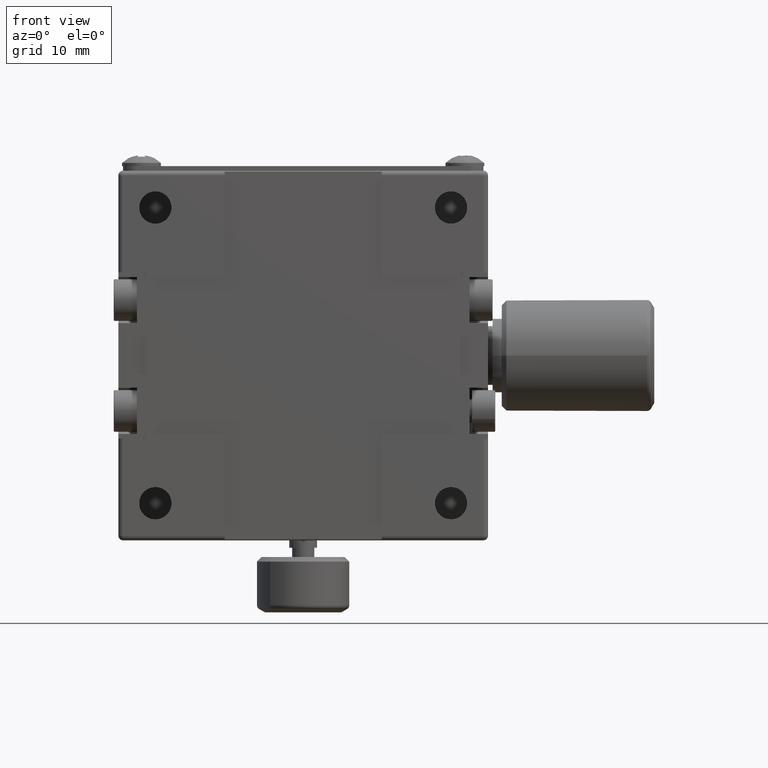
[diagram: clean part render]
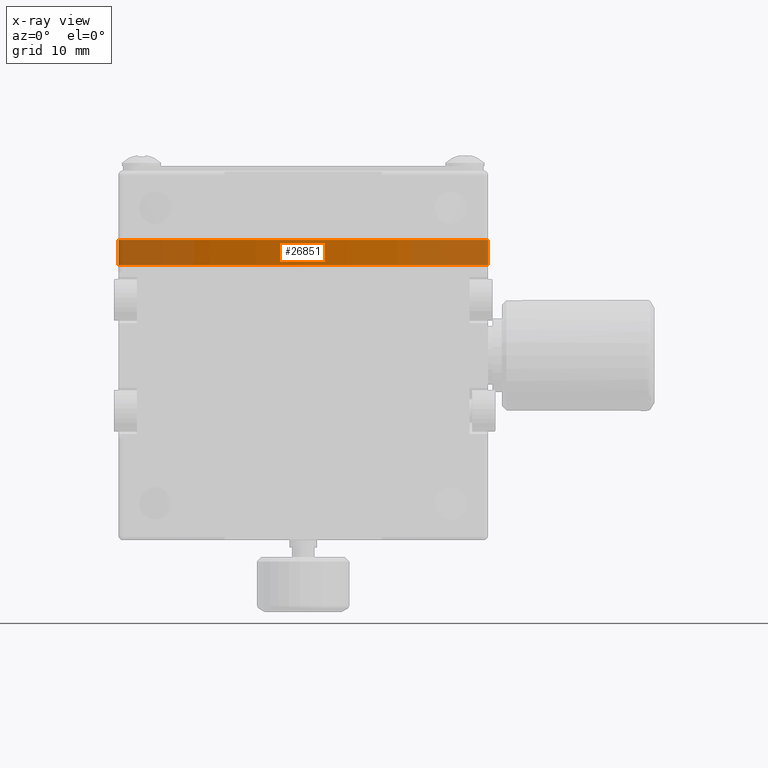
[diagram: x-ray — body ghosted, one internal face saturated and labeled with its STEP entity id]
A machine part, front view, then the same camera in x-ray: the body is ghosted and one INTERNAL B-rep face — a face not visible from any outside direction — is saturated and labeled: STEP entity #26851.
In plain terms, the highlighted cylindrical surface (partial cylindrical patch) has radius 52.8 mm, axis along (0, 0, 1).
Its self-contained STEP definition (entity closure, byte-faithful):
#735 = AXIS2_PLACEMENT_3D ( 'NONE', #7757, #3653, #10085 ) ;
#1606 = DIRECTION ( 'NONE',  ( 0.000000000000000000, 0.000000000000000000, 1.000000000000000000 ) ) ;
#3174 = VERTEX_POINT ( 'NONE', #23782 ) ;
#3506 = CARTESIAN_POINT ( 'NONE',  ( 0.000000000000000000, 80.00000000000000000, 9.799999999999998934 ) ) ;
#3653 = DIRECTION ( 'NONE',  ( 0.000000000000000000, 0.000000000000000000, 1.000000000000000000 ) ) ;
#3990 = ORIENTED_EDGE ( 'NONE', *, *, #7629, .F. ) ;
#7100 = VERTEX_POINT ( 'NONE', #12073 ) ;
#7629 = EDGE_CURVE ( 'NONE', #26349, #7100, #11826, .T. ) ;
#7757 = CARTESIAN_POINT ( 'NONE',  ( 0.000000000000000000, 80.00000000000000000, 12.50000000000000000 ) ) ;
#7844 = EDGE_LOOP ( 'NONE', ( #12038, #3990, #17969, #9786 ) ) ;
#9546 = FACE_OUTER_BOUND ( 'NONE', #7844, .T. ) ;
#9786 = ORIENTED_EDGE ( 'NONE', *, *, #20801, .F. ) ;
#10085 = DIRECTION ( 'NONE',  ( 1.000000000000000000, 0.000000000000000000, 0.000000000000000000 ) ) ;
#11158 = CYLINDRICAL_SURFACE ( 'NONE', #16311, 52.79999999999999716 ) ;
#11826 = LINE ( 'NONE', #18843, #21847 ) ;
#12038 = ORIENTED_EDGE ( 'NONE', *, *, #13849, .T. ) ;
#12073 = CARTESIAN_POINT ( 'NONE',  ( 20.00000000000000000, 31.13447022695855182, 9.799999999999998934 ) ) ;
#12384 = VERTEX_POINT ( 'NONE', #14633 ) ;
#12711 = CARTESIAN_POINT ( 'NONE',  ( -20.00000000000000000, 31.13447022695855182, -9.250555349946518291 ) ) ;
#12993 = LINE ( 'NONE', #12711, #18959 ) ;
#13849 = EDGE_CURVE ( 'NONE', #12384, #7100, #24777, .T. ) ;
#13934 = DIRECTION ( 'NONE',  ( 1.000000000000000000, 0.000000000000000000, 0.000000000000000000 ) ) ;
#14633 = CARTESIAN_POINT ( 'NONE',  ( -20.00000000000000000, 31.13447022695855182, 9.799999999999998934 ) ) ;
#14750 = DIRECTION ( 'NONE',  ( 1.000000000000000000, 0.000000000000000000, 0.000000000000000000 ) ) ;
#16060 = DIRECTION ( 'NONE',  ( 0.000000000000000000, 0.000000000000000000, -1.000000000000000000 ) ) ;
#16311 = AXIS2_PLACEMENT_3D ( 'NONE', #26796, #24605, #13934 ) ;
#17969 = ORIENTED_EDGE ( 'NONE', *, *, #20630, .F. ) ;
#18749 = AXIS2_PLACEMENT_3D ( 'NONE', #3506, #1606, #14750 ) ;
#18843 = CARTESIAN_POINT ( 'NONE',  ( 20.00000000000000000, 31.13447022695855182, -9.250555349946518291 ) ) ;
#18959 = VECTOR ( 'NONE', #24240, 1000.000000000000000 ) ;
#20354 = CIRCLE ( 'NONE', #735, 52.79999999999999716 ) ;
#20630 = EDGE_CURVE ( 'NONE', #3174, #26349, #20354, .T. ) ;
#20801 = EDGE_CURVE ( 'NONE', #12384, #3174, #12993, .T. ) ;
#21847 = VECTOR ( 'NONE', #16060, 1000.000000000000000 ) ;
#23782 = CARTESIAN_POINT ( 'NONE',  ( -20.00000000000000000, 31.13447022695855182, 12.50000000000000000 ) ) ;
#24240 = DIRECTION ( 'NONE',  ( 0.000000000000000000, 0.000000000000000000, 1.000000000000000000 ) ) ;
#24605 = DIRECTION ( 'NONE',  ( 0.000000000000000000, 0.000000000000000000, 1.000000000000000000 ) ) ;
#24777 = CIRCLE ( 'NONE', #18749, 52.79999999999999716 ) ;
#26349 = VERTEX_POINT ( 'NONE', #28035 ) ;
#26796 = CARTESIAN_POINT ( 'NONE',  ( 0.000000000000000000, 80.00000000000000000, -9.250555349946518291 ) ) ;
#26851 = ADVANCED_FACE ( 'NONE', ( #9546 ), #11158, .T. ) ;
#28035 = CARTESIAN_POINT ( 'NONE',  ( 20.00000000000000000, 31.13447022695855182, 12.50000000000000000 ) ) ;